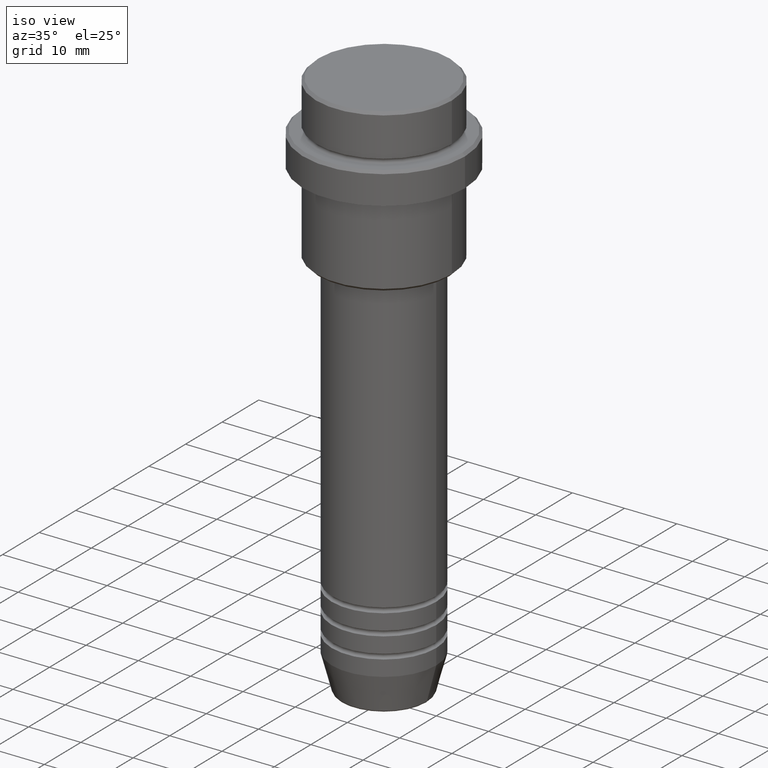
[diagram: clean part render]
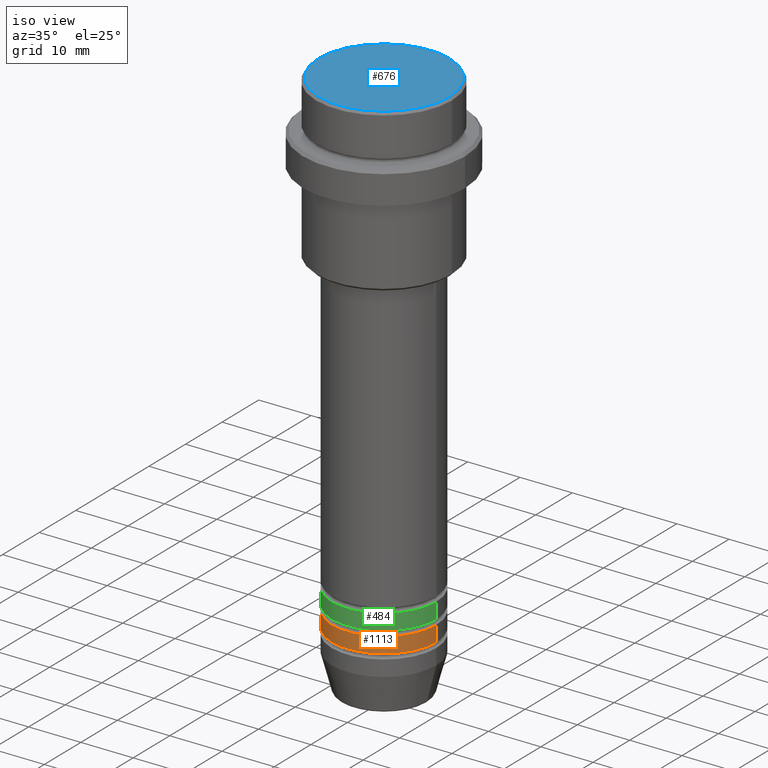
[diagram: same view with three faces highlighted in distinct colors, each labeled with its STEP entity id]
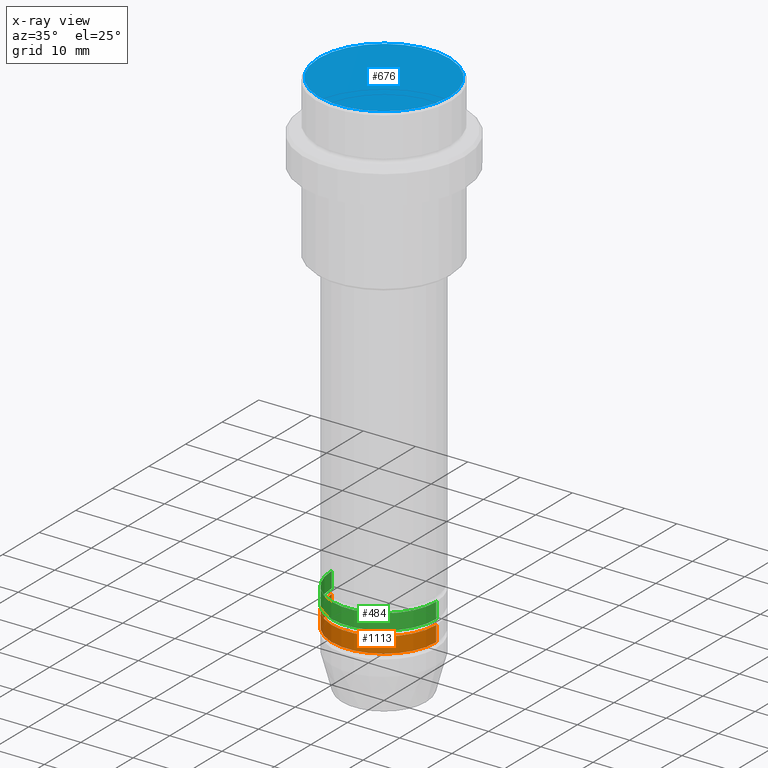
[diagram: x-ray of the same camera — body ghosted, the three highlighted faces saturated]
A machine part, iso view with three faces highlighted in distinct colors.
The next image is the same camera in x-ray (body ghosted, the three faces saturated) — at least one of them is partly hidden behind the body in this view.
Their STEP definitions:

[orange] entity #1113 — the highlighted cylindrical surface (partial cylindrical patch) has radius 10 mm, axis along (-0, -0, 1).
#60 = CIRCLE ( 'NONE', #290, 10.00000000000000000 ) ;
#103 = CARTESIAN_POINT ( 'NONE',  ( 10.00000000000000000, 0.000000000000000000, -91.99999999999988631 ) ) ;
#200 = VECTOR ( 'NONE', #989, 1000.000000000000000 ) ;
#272 = FACE_OUTER_BOUND ( 'NONE', #1195, .T. ) ;
#290 = AXIS2_PLACEMENT_3D ( 'NONE', #932, #1163, #944 ) ;
#364 = CARTESIAN_POINT ( 'NONE',  ( 10.00000000000000000, 0.000000000000000000, -94.99999999999987210 ) ) ;
#388 = CYLINDRICAL_SURFACE ( 'NONE', #683, 10.00000000000000000 ) ;
#473 = VERTEX_POINT ( 'NONE', #1238 ) ;
#505 = VERTEX_POINT ( 'NONE', #364 ) ;
#531 = ORIENTED_EDGE ( 'NONE', *, *, #1024, .F. ) ;
#546 = CARTESIAN_POINT ( 'NONE',  ( -10.00000000000000000, 1.224646799147353256E-15, 0.000000000000000000 ) ) ;
#608 = LINE ( 'NONE', #926, #870 ) ;
#622 = AXIS2_PLACEMENT_3D ( 'NONE', #975, #762, #736 ) ;
#634 = VERTEX_POINT ( 'NONE', #1394 ) ;
#667 = VERTEX_POINT ( 'NONE', #103 ) ;
#683 = AXIS2_PLACEMENT_3D ( 'NONE', #812, #1262, #1144 ) ;
#707 = ORIENTED_EDGE ( 'NONE', *, *, #949, .T. ) ;
#736 = DIRECTION ( 'NONE',  ( 1.000000000000000000, 0.000000000000000000, 0.000000000000000000 ) ) ;
#762 = DIRECTION ( 'NONE',  ( -0.000000000000000000, -0.000000000000000000, 1.000000000000000000 ) ) ;
#812 = CARTESIAN_POINT ( 'NONE',  ( 0.000000000000000000, 0.000000000000000000, 0.000000000000000000 ) ) ;
#870 = VECTOR ( 'NONE', #1379, 1000.000000000000000 ) ;
#926 = CARTESIAN_POINT ( 'NONE',  ( 10.00000000000000000, 0.000000000000000000, 0.000000000000000000 ) ) ;
#932 = CARTESIAN_POINT ( 'NONE',  ( 0.000000000000000000, 0.000000000000000000, -91.99999999999988631 ) ) ;
#944 = DIRECTION ( 'NONE',  ( 1.000000000000000000, 0.000000000000000000, 0.000000000000000000 ) ) ;
#949 = EDGE_CURVE ( 'NONE', #473, #505, #1152, .T. ) ;
#975 = CARTESIAN_POINT ( 'NONE',  ( 0.000000000000000000, 0.000000000000000000, -94.99999999999987210 ) ) ;
#979 = ORIENTED_EDGE ( 'NONE', *, *, #1071, .F. ) ;
#989 = DIRECTION ( 'NONE',  ( -0.000000000000000000, -0.000000000000000000, 1.000000000000000000 ) ) ;
#1024 = EDGE_CURVE ( 'NONE', #634, #667, #60, .T. ) ;
#1053 = EDGE_CURVE ( 'NONE', #505, #667, #608, .T. ) ;
#1054 = ORIENTED_EDGE ( 'NONE', *, *, #1053, .T. ) ;
#1071 = EDGE_CURVE ( 'NONE', #473, #634, #1084, .T. ) ;
#1084 = LINE ( 'NONE', #546, #200 ) ;
#1113 = ADVANCED_FACE ( 'NONE', ( #272 ), #388, .T. ) ;
#1144 = DIRECTION ( 'NONE',  ( 1.000000000000000000, 0.000000000000000000, 0.000000000000000000 ) ) ;
#1152 = CIRCLE ( 'NONE', #622, 10.00000000000000000 ) ;
#1163 = DIRECTION ( 'NONE',  ( -0.000000000000000000, -0.000000000000000000, 1.000000000000000000 ) ) ;
#1195 = EDGE_LOOP ( 'NONE', ( #979, #707, #1054, #531 ) ) ;
#1238 = CARTESIAN_POINT ( 'NONE',  ( -10.00000000000000000, 1.224646799147353256E-15, -94.99999999999987210 ) ) ;
#1262 = DIRECTION ( 'NONE',  ( -0.000000000000000000, -0.000000000000000000, 1.000000000000000000 ) ) ;
#1379 = DIRECTION ( 'NONE',  ( -0.000000000000000000, -0.000000000000000000, 1.000000000000000000 ) ) ;
#1394 = CARTESIAN_POINT ( 'NONE',  ( -10.00000000000000000, 1.224646799147353256E-15, -91.99999999999988631 ) ) ;

[blue] entity #676 — the highlighted planar face has unit normal (0, -0, 1).
#1 = PLANE ( 'NONE',  #128 ) ;
#128 = AXIS2_PLACEMENT_3D ( 'NONE', #840, #742, #737 ) ;
#168 = CARTESIAN_POINT ( 'NONE',  ( -12.50000000000002665, 0.000000000000000000, 0.000000000000000000 ) ) ;
#184 = DIRECTION ( 'NONE',  ( 1.000000000000000000, 0.000000000000000000, 0.000000000000000000 ) ) ;
#199 = CIRCLE ( 'NONE', #377, 12.50000000000002665 ) ;
#279 = VERTEX_POINT ( 'NONE', #168 ) ;
#297 = EDGE_LOOP ( 'NONE', ( #1022, #753 ) ) ;
#377 = AXIS2_PLACEMENT_3D ( 'NONE', #508, #909, #184 ) ;
#446 = CIRCLE ( 'NONE', #1407, 12.50000000000002665 ) ;
#508 = CARTESIAN_POINT ( 'NONE',  ( 0.000000000000000000, 0.000000000000000000, 0.000000000000000000 ) ) ;
#564 = DIRECTION ( 'NONE',  ( 1.000000000000000000, 0.000000000000000000, 0.000000000000000000 ) ) ;
#627 = EDGE_CURVE ( 'NONE', #279, #1218, #199, .T. ) ;
#676 = ADVANCED_FACE ( 'NONE', ( #976 ), #1, .T. ) ;
#737 = DIRECTION ( 'NONE',  ( 1.000000000000000000, 0.000000000000000000, 0.000000000000000000 ) ) ;
#742 = DIRECTION ( 'NONE',  ( 0.000000000000000000, -0.000000000000000000, 1.000000000000000000 ) ) ;
#753 = ORIENTED_EDGE ( 'NONE', *, *, #874, .T. ) ;
#759 = DIRECTION ( 'NONE',  ( -0.000000000000000000, -0.000000000000000000, 1.000000000000000000 ) ) ;
#840 = CARTESIAN_POINT ( 'NONE',  ( 0.000000000000000000, 0.000000000000000000, 0.000000000000000000 ) ) ;
#874 = EDGE_CURVE ( 'NONE', #1218, #279, #446, .T. ) ;
#909 = DIRECTION ( 'NONE',  ( -0.000000000000000000, -0.000000000000000000, 1.000000000000000000 ) ) ;
#976 = FACE_OUTER_BOUND ( 'NONE', #297, .T. ) ;
#1022 = ORIENTED_EDGE ( 'NONE', *, *, #627, .T. ) ;
#1093 = CARTESIAN_POINT ( 'NONE',  ( 0.000000000000000000, 0.000000000000000000, 0.000000000000000000 ) ) ;
#1218 = VERTEX_POINT ( 'NONE', #1242 ) ;
#1242 = CARTESIAN_POINT ( 'NONE',  ( 12.50000000000002665, 1.561424668912876886E-15, 0.000000000000000000 ) ) ;
#1407 = AXIS2_PLACEMENT_3D ( 'NONE', #1093, #759, #564 ) ;

[green] entity #484 — the highlighted cylindrical surface (partial cylindrical patch) has radius 10 mm, axis along (-0, -0, 1).
#2 = ORIENTED_EDGE ( 'NONE', *, *, #1157, .T. ) ;
#99 = DIRECTION ( 'NONE',  ( 1.000000000000000000, 0.000000000000000000, 0.000000000000000000 ) ) ;
#174 = EDGE_CURVE ( 'NONE', #1174, #482, #390, .T. ) ;
#179 = CIRCLE ( 'NONE', #1303, 10.00000000000000000 ) ;
#214 = LINE ( 'NONE', #794, #938 ) ;
#238 = ORIENTED_EDGE ( 'NONE', *, *, #1164, .F. ) ;
#267 = CARTESIAN_POINT ( 'NONE',  ( -10.00000000000000000, 1.224646799147353256E-15, -87.99999999999988631 ) ) ;
#273 = DIRECTION ( 'NONE',  ( 1.000000000000000000, 0.000000000000000000, 0.000000000000000000 ) ) ;
#303 = VERTEX_POINT ( 'NONE', #1255 ) ;
#383 = FACE_OUTER_BOUND ( 'NONE', #459, .T. ) ;
#390 = LINE ( 'NONE', #945, #867 ) ;
#453 = ORIENTED_EDGE ( 'NONE', *, *, #174, .F. ) ;
#459 = EDGE_LOOP ( 'NONE', ( #453, #2, #533, #238 ) ) ;
#482 = VERTEX_POINT ( 'NONE', #267 ) ;
#484 = ADVANCED_FACE ( 'NONE', ( #383 ), #591, .T. ) ;
#486 = CARTESIAN_POINT ( 'NONE',  ( 0.000000000000000000, 0.000000000000000000, 0.000000000000000000 ) ) ;
#499 = CARTESIAN_POINT ( 'NONE',  ( 0.000000000000000000, 0.000000000000000000, -87.99999999999988631 ) ) ;
#533 = ORIENTED_EDGE ( 'NONE', *, *, #548, .T. ) ;
#548 = EDGE_CURVE ( 'NONE', #303, #654, #214, .T. ) ;
#591 = CYLINDRICAL_SURFACE ( 'NONE', #602, 10.00000000000000000 ) ;
#602 = AXIS2_PLACEMENT_3D ( 'NONE', #486, #1106, #887 ) ;
#611 = DIRECTION ( 'NONE',  ( -0.000000000000000000, -0.000000000000000000, 1.000000000000000000 ) ) ;
#654 = VERTEX_POINT ( 'NONE', #950 ) ;
#669 = DIRECTION ( 'NONE',  ( -0.000000000000000000, -0.000000000000000000, 1.000000000000000000 ) ) ;
#734 = DIRECTION ( 'NONE',  ( -0.000000000000000000, -0.000000000000000000, 1.000000000000000000 ) ) ;
#794 = CARTESIAN_POINT ( 'NONE',  ( 10.00000000000000000, 0.000000000000000000, 0.000000000000000000 ) ) ;
#804 = CIRCLE ( 'NONE', #1368, 10.00000000000000000 ) ;
#867 = VECTOR ( 'NONE', #1181, 1000.000000000000000 ) ;
#887 = DIRECTION ( 'NONE',  ( 1.000000000000000000, 0.000000000000000000, 0.000000000000000000 ) ) ;
#938 = VECTOR ( 'NONE', #669, 1000.000000000000000 ) ;
#945 = CARTESIAN_POINT ( 'NONE',  ( -10.00000000000000000, 1.224646799147353256E-15, 0.000000000000000000 ) ) ;
#950 = CARTESIAN_POINT ( 'NONE',  ( 10.00000000000000000, 0.000000000000000000, -87.99999999999988631 ) ) ;
#1018 = CARTESIAN_POINT ( 'NONE',  ( -10.00000000000000000, 1.224646799147353256E-15, -90.99999999999988631 ) ) ;
#1106 = DIRECTION ( 'NONE',  ( -0.000000000000000000, -0.000000000000000000, 1.000000000000000000 ) ) ;
#1157 = EDGE_CURVE ( 'NONE', #1174, #303, #179, .T. ) ;
#1164 = EDGE_CURVE ( 'NONE', #482, #654, #804, .T. ) ;
#1174 = VERTEX_POINT ( 'NONE', #1018 ) ;
#1181 = DIRECTION ( 'NONE',  ( -0.000000000000000000, -0.000000000000000000, 1.000000000000000000 ) ) ;
#1255 = CARTESIAN_POINT ( 'NONE',  ( 10.00000000000000000, 0.000000000000000000, -90.99999999999988631 ) ) ;
#1300 = CARTESIAN_POINT ( 'NONE',  ( 0.000000000000000000, 0.000000000000000000, -90.99999999999988631 ) ) ;
#1303 = AXIS2_PLACEMENT_3D ( 'NONE', #1300, #734, #99 ) ;
#1368 = AXIS2_PLACEMENT_3D ( 'NONE', #499, #611, #273 ) ;